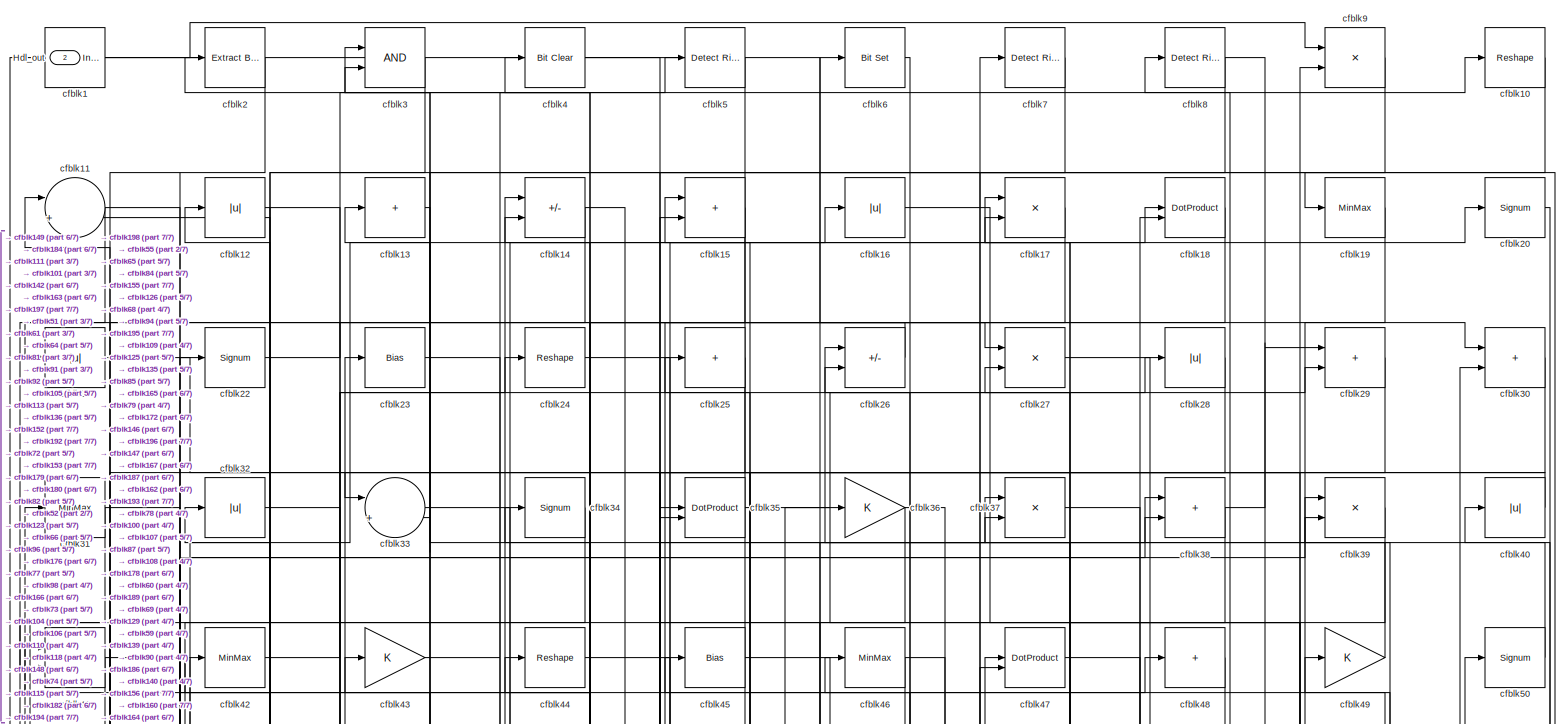
[diagram: root canvas - part 1/7, full width, top band]
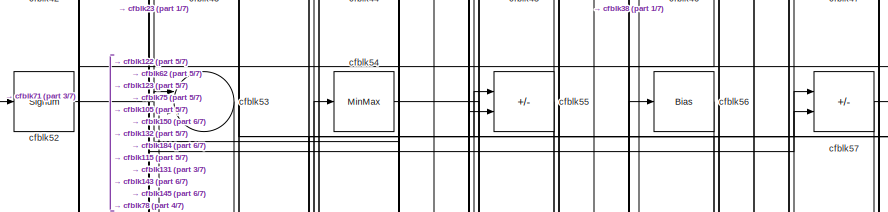
[diagram: root canvas - part 2/7, top center region]
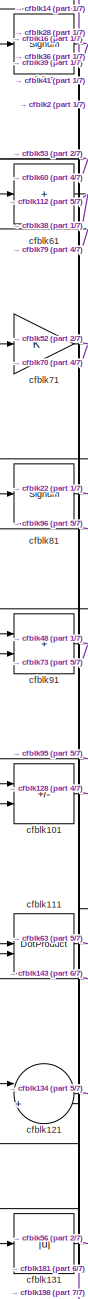
[diagram: root canvas - part 3/7, middle left region]
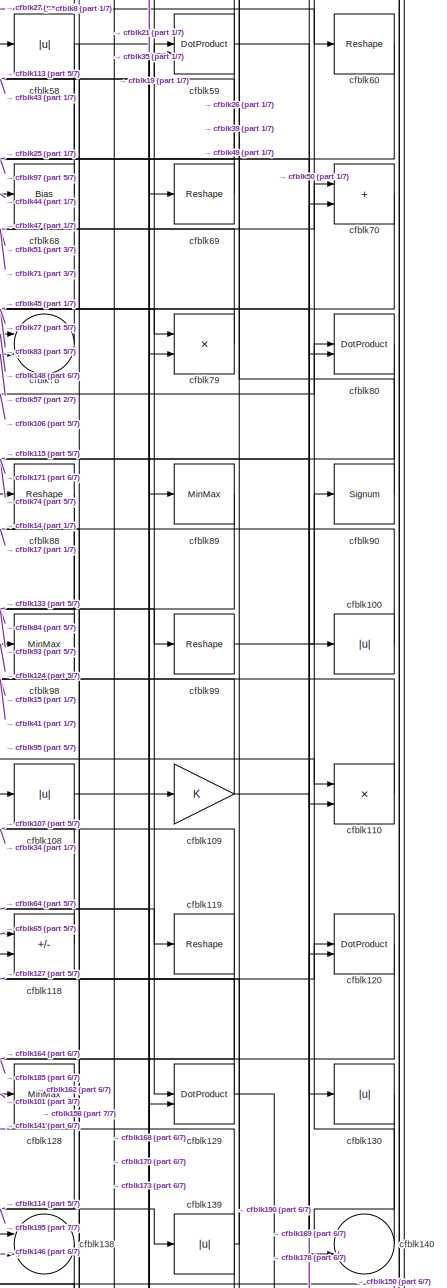
[diagram: root canvas - part 4/7, middle right region]
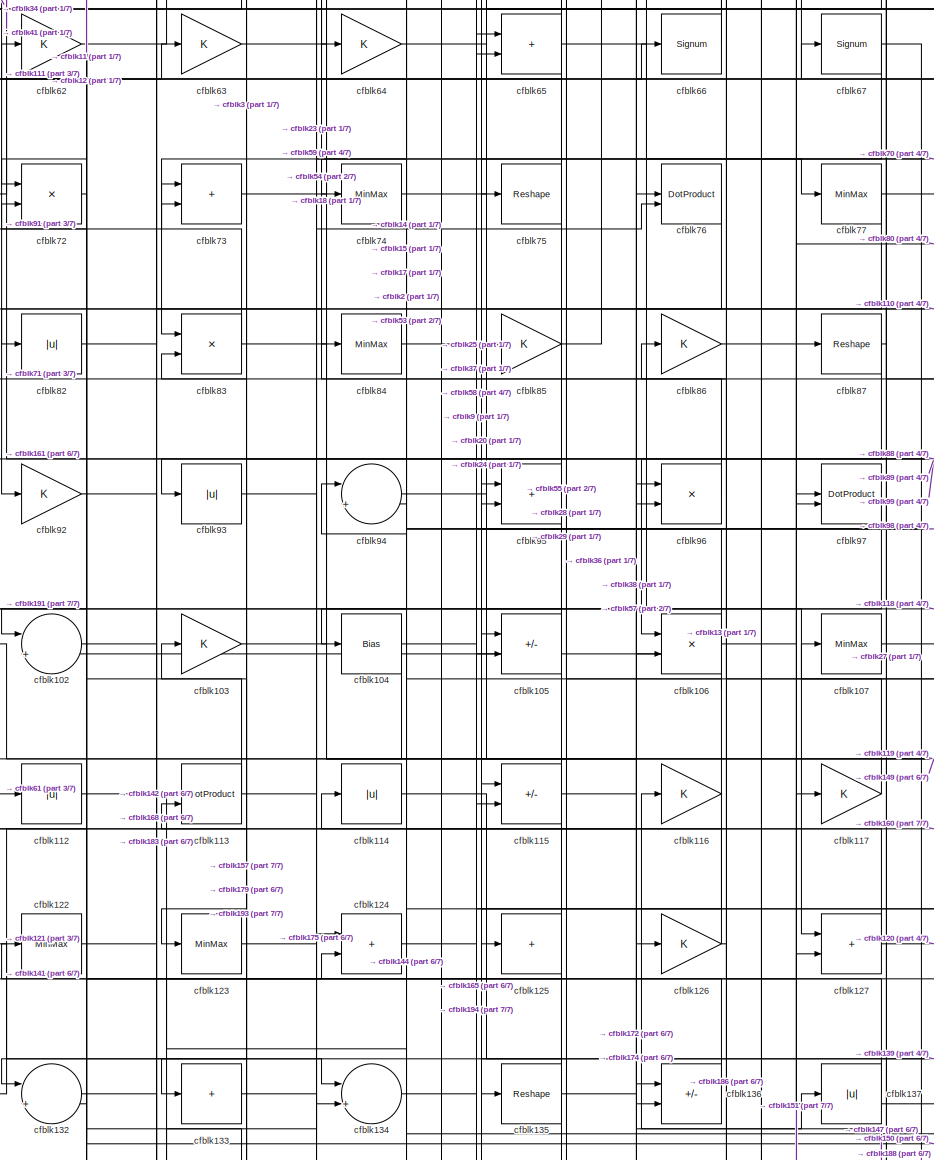
[diagram: root canvas - part 5/7, central region]
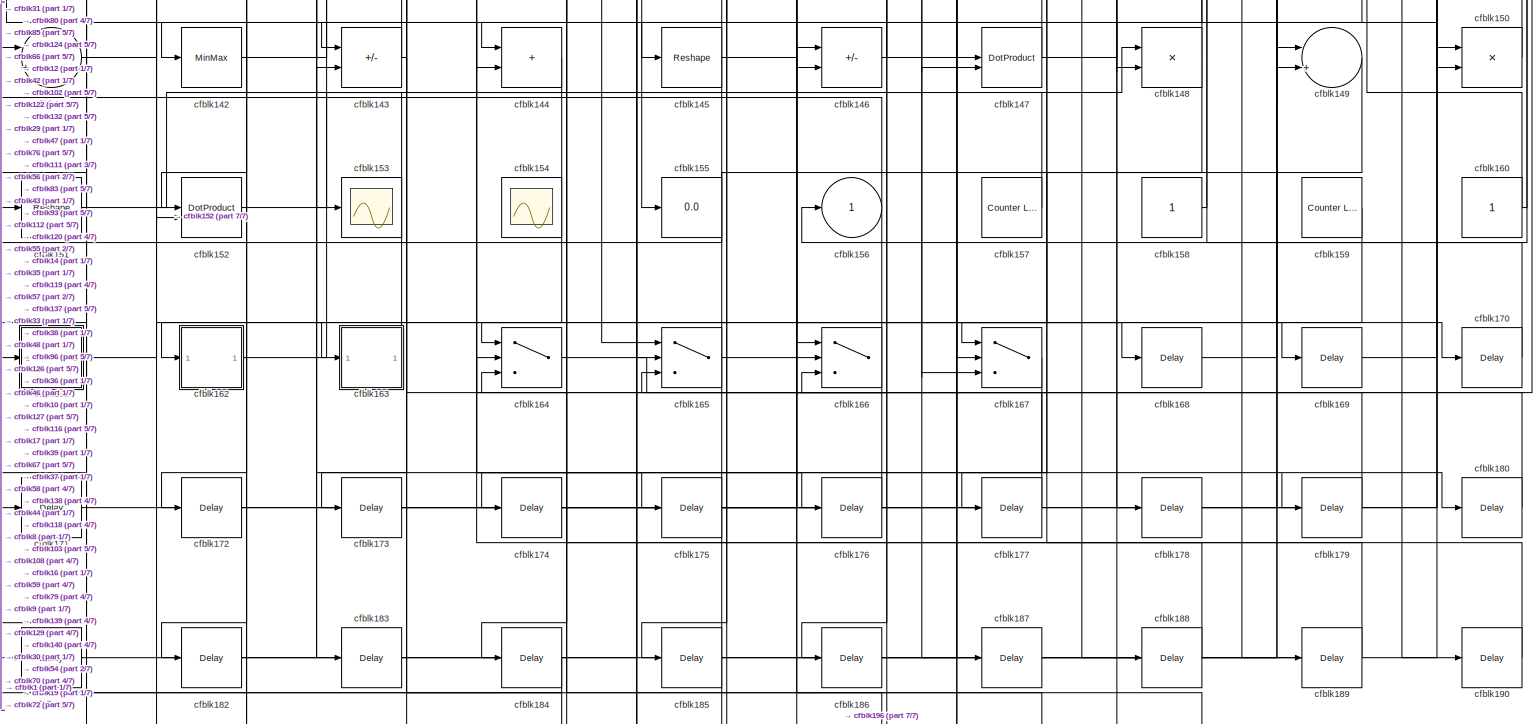
[diagram: root canvas - part 6/7, full width, bottom band]
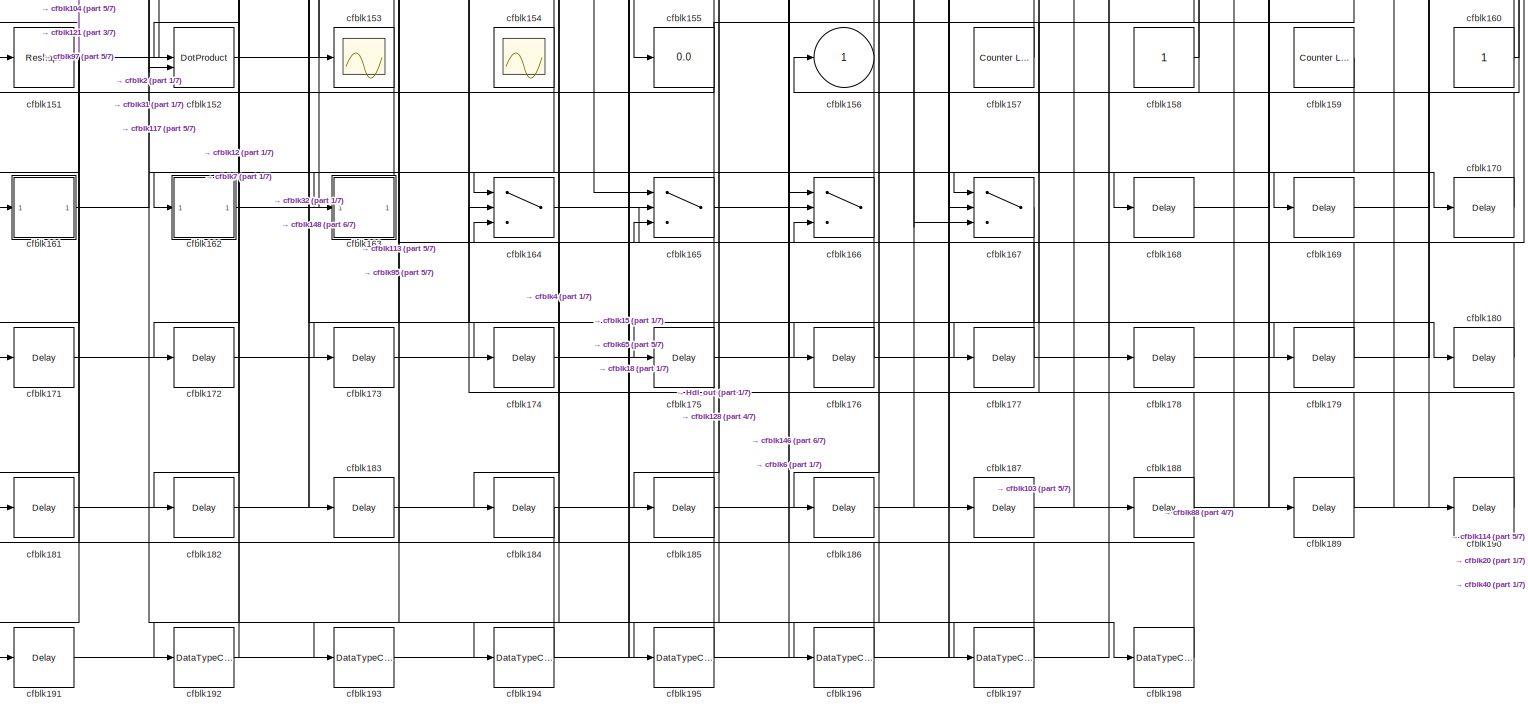
[diagram: root canvas - part 7/7, full width, bottom band]
MODEL slx_fd63c8d39bc7
KIND model
CONFIG AbsTol = auto
CONFIG EnableMultiTasking = off
CONFIG FixedStep = auto
CONFIG MaxStep = auto
CONFIG MinStep = auto
CONFIG RelTol = 1e-3
CONFIG SampleTimeConstraint = Unconstrained
CONFIG SolverName = VariableStepAuto
CONFIG StartTime = 0.0
CONFIG StopTime = 10.0
BLOCK [Outport] Hdl_out
  OutDataTypeStr = uint8
  Port = 2
BLOCK [Reference] cfblk1  REF=simulink/Logic and Bit
Operations/Detect
Increase
  LibrarySourceBlock = hdlsllib/Logic and Bit\nOperations/Detect\nIncrease
  SourceBlock = simulink/Logic and Bit\nOperations/Detect\nIncrease
  SourceType = Detect Increase
BLOCK [Reshape] cfblk10
BLOCK [Abs] cfblk100
  OutDataTypeStr = uint8
  SaturateOnIntegerOverflow = off
BLOCK [Sum] cfblk101
  IconShape = rectangular
  Inputs = +-
  OutDataTypeStr = uint8
BLOCK [Sum] cfblk102
  Inputs = |++
  OutDataTypeStr = uint8
BLOCK [Gain] cfblk103
  OutDataTypeStr = uint8
BLOCK [Bias] cfblk104
  Bias = 0.0
  SaturateOnIntegerOverflow = off
BLOCK [Sum] cfblk105
  IconShape = rectangular
  Inputs = +-
  OutDataTypeStr = uint8
BLOCK [Product] cfblk106
  Inputs = */
  OutDataTypeStr = uint8
  RndMeth = Zero
  SaturateOnIntegerOverflow = on
BLOCK [MinMax] cfblk107
  OutDataTypeStr = uint8
BLOCK [Abs] cfblk108
  OutDataTypeStr = uint8
  SaturateOnIntegerOverflow = off
BLOCK [Gain] cfblk109
  OutDataTypeStr = uint8
BLOCK [Sum] cfblk11
  Inputs = |++
  OutDataTypeStr = uint8
BLOCK [Product] cfblk110
  Inputs = */
  OutDataTypeStr = uint8
  RndMeth = Zero
  SaturateOnIntegerOverflow = on
BLOCK [DotProduct] cfblk111
  OutDataTypeStr = uint8
BLOCK [Abs] cfblk112
  OutDataTypeStr = uint8
  SaturateOnIntegerOverflow = off
BLOCK [DotProduct] cfblk113
  OutDataTypeStr = uint8
BLOCK [Abs] cfblk114
  OutDataTypeStr = uint8
  SaturateOnIntegerOverflow = off
BLOCK [Sum] cfblk115
  IconShape = rectangular
  Inputs = +-
  OutDataTypeStr = uint8
BLOCK [Gain] cfblk116
  OutDataTypeStr = uint8
BLOCK [Gain] cfblk117
  OutDataTypeStr = uint8
BLOCK [Sum] cfblk118
  IconShape = rectangular
  Inputs = +-
  OutDataTypeStr = uint8
BLOCK [Reshape] cfblk119
BLOCK [Abs] cfblk12
  OutDataTypeStr = uint8
  SaturateOnIntegerOverflow = off
BLOCK [DotProduct] cfblk120
  OutDataTypeStr = uint8
BLOCK [Sum] cfblk121
  Inputs = |++
  OutDataTypeStr = uint8
BLOCK [MinMax] cfblk122
  OutDataTypeStr = uint8
BLOCK [MinMax] cfblk123
  OutDataTypeStr = uint8
BLOCK [Sum] cfblk124
  IconShape = rectangular
  OutDataTypeStr = uint8
BLOCK [Sum] cfblk125
  IconShape = rectangular
  Inputs = +
  OutDataTypeStr = uint8
BLOCK [Gain] cfblk126
  OutDataTypeStr = uint8
BLOCK [Sum] cfblk127
  IconShape = rectangular
  OutDataTypeStr = uint8
BLOCK [MinMax] cfblk128
  OutDataTypeStr = uint8
BLOCK [DotProduct] cfblk129
  OutDataTypeStr = uint8
BLOCK [Sum] cfblk13
  IconShape = rectangular
  Inputs = +
  OutDataTypeStr = uint8
BLOCK [Abs] cfblk130
  OutDataTypeStr = uint8
  SaturateOnIntegerOverflow = off
BLOCK [Abs] cfblk131
  OutDataTypeStr = uint8
  SaturateOnIntegerOverflow = off
BLOCK [Sum] cfblk132
  Inputs = |++
  OutDataTypeStr = uint8
BLOCK [Sum] cfblk133
  IconShape = rectangular
  Inputs = +
  OutDataTypeStr = uint8
BLOCK [Sum] cfblk134
  Inputs = |++
  OutDataTypeStr = uint8
BLOCK [Reshape] cfblk135
BLOCK [Sum] cfblk136
  IconShape = rectangular
  Inputs = +-
  OutDataTypeStr = uint8
BLOCK [Abs] cfblk137
  OutDataTypeStr = uint8
  SaturateOnIntegerOverflow = off
BLOCK [Sum] cfblk138
  Inputs = |++
  OutDataTypeStr = uint8
BLOCK [Abs] cfblk139
  OutDataTypeStr = uint8
  SaturateOnIntegerOverflow = off
BLOCK [Sum] cfblk14
  IconShape = rectangular
  Inputs = +-
  OutDataTypeStr = uint8
BLOCK [Sum] cfblk140
  Inputs = |++
  OutDataTypeStr = uint8
BLOCK [Sum] cfblk141
  Inputs = |++
  OutDataTypeStr = uint8
BLOCK [MinMax] cfblk142
  OutDataTypeStr = uint8
BLOCK [Sum] cfblk143
  IconShape = rectangular
  Inputs = +-
  OutDataTypeStr = uint8
BLOCK [Sum] cfblk144
  IconShape = rectangular
  OutDataTypeStr = uint8
BLOCK [Reshape] cfblk145
BLOCK [Sum] cfblk146
  IconShape = rectangular
  Inputs = +-
  OutDataTypeStr = uint8
BLOCK [DotProduct] cfblk147
  OutDataTypeStr = uint8
BLOCK [Product] cfblk148
  Inputs = */
  OutDataTypeStr = uint8
  RndMeth = Zero
  SaturateOnIntegerOverflow = on
BLOCK [Sum] cfblk149
  Inputs = |++
  OutDataTypeStr = uint8
BLOCK [Sum] cfblk15
  IconShape = rectangular
  OutDataTypeStr = uint8
BLOCK [Product] cfblk150
  Inputs = */
  OutDataTypeStr = uint8
  RndMeth = Zero
  SaturateOnIntegerOverflow = on
BLOCK [Reshape] cfblk151
BLOCK [DotProduct] cfblk152
  OutDataTypeStr = uint8
BLOCK [Scope] cfblk153
  Floating = off
  NumInputPorts = 1
  ScopeSpecificationString = Simulink.scopes.TimeScopeBlockCfg('CurrentConfiguration', extmgr.ConfigurationSet(extmgr.Configuration('Core','General UI',true),extmgr.Configuration('Core','Source UI',true),extmgr.Configuration('Sources','WiredSimulink',true,'DataLoggingVariableName','ScopeData2','DataLoggingSaveFormat','Array','DataLoggingLimitDataPoints',true,'DataLoggingDecimation','1'),extmgr.Configuration('Visuals','Time Do...<+868ch>
BLOCK [Scope] cfblk154
  Floating = on
  NumInputPorts = 1
  ScopeSpecificationString = Simulink.scopes.TimeScopeBlockCfg('CurrentConfiguration', extmgr.ConfigurationSet(extmgr.Configuration('Core','General UI',true,'FigureColor',[0.156862745098039 0.156862745098039 0.156862745098039]),extmgr.Configuration('Core','Source UI',true),extmgr.Configuration('Sources','WiredSimulink',true,'DataLoggingVariableName','ScopeData1','DataLoggingSaveFormat','StructureWithTime','DataLoggingLimitDat...<+2713ch>
BLOCK [Display] cfblk155
  Decimation = 1
BLOCK [Outport] cfblk156
  OutDataTypeStr = uint8
  VectorParamsAs1DForOutWhenUnconnected = off
BLOCK [Reference] cfblk157  REF=hdlsllib/Sources/Counter
Limited
  SourceBlock = hdlsllib/Sources/Counter\nLimited
  SourceType = Counter Limited
BLOCK [Constant] cfblk158
  OutDataTypeStr = uint8
  SampleTime = -1
BLOCK [Reference] cfblk159  REF=hdlsllib/Sources/Counter
Limited
  SourceBlock = hdlsllib/Sources/Counter\nLimited
  SourceType = Counter Limited
BLOCK [Abs] cfblk16
  OutDataTypeStr = uint8
  SaturateOnIntegerOverflow = off
BLOCK [Constant] cfblk160
  OutDataTypeStr = uint8
  SampleTime = -1
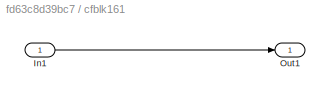
BLOCK [SubSystem] cfblk161
  LibrarySourceBlock = hdlsllib/Ports &\nSubsystems/Subsystem
BLOCK [Inport] cfblk161/In1
BLOCK [Outport] cfblk161/Out1
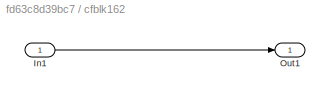
BLOCK [SubSystem] cfblk162
  LibrarySourceBlock = hdlsllib/Ports &\nSubsystems/Subsystem
BLOCK [Inport] cfblk162/In1
BLOCK [Outport] cfblk162/Out1
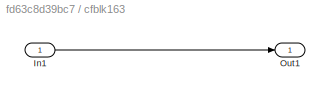
BLOCK [SubSystem] cfblk163
  LibrarySourceBlock = hdlsllib/Ports &\nSubsystems/Subsystem
BLOCK [Inport] cfblk163/In1
BLOCK [Outport] cfblk163/Out1
BLOCK [Switch] cfblk164
  InputSameDT = off
  OutDataTypeStr = uint8
  SaturateOnIntegerOverflow = off
BLOCK [Switch] cfblk165
  InputSameDT = off
  OutDataTypeStr = uint8
  SaturateOnIntegerOverflow = off
BLOCK [Switch] cfblk166
  InputSameDT = off
  OutDataTypeStr = uint8
  SaturateOnIntegerOverflow = off
BLOCK [Switch] cfblk167
  InputSameDT = off
  OutDataTypeStr = uint8
  SaturateOnIntegerOverflow = off
BLOCK [Delay] cfblk168
  InputPortMap = u0
  SampleTime = 1
BLOCK [Delay] cfblk169
  InputPortMap = u0
  SampleTime = 1
BLOCK [Product] cfblk17
  Inputs = */
  OutDataTypeStr = uint8
  RndMeth = Zero
  SaturateOnIntegerOverflow = on
BLOCK [Delay] cfblk170
  InputPortMap = u0
  SampleTime = 1
BLOCK [Delay] cfblk171
  InputPortMap = u0
  SampleTime = 1
BLOCK [Delay] cfblk172
  InputPortMap = u0
  SampleTime = 1
BLOCK [Delay] cfblk173
  InputPortMap = u0
  SampleTime = 1
BLOCK [Delay] cfblk174
  InputPortMap = u0
  SampleTime = 1
BLOCK [Delay] cfblk175
  InputPortMap = u0
  SampleTime = 1
BLOCK [Delay] cfblk176
  InputPortMap = u0
  SampleTime = 1
BLOCK [Delay] cfblk177
  InputPortMap = u0
  SampleTime = 1
BLOCK [Delay] cfblk178
  InputPortMap = u0
  SampleTime = 1
BLOCK [Delay] cfblk179
  InputPortMap = u0
  SampleTime = 1
BLOCK [DotProduct] cfblk18
  OutDataTypeStr = uint8
BLOCK [Delay] cfblk180
  InputPortMap = u0
  SampleTime = 1
BLOCK [Delay] cfblk181
  InputPortMap = u0
  SampleTime = 1
BLOCK [Delay] cfblk182
  InputPortMap = u0
  SampleTime = 1
BLOCK [Delay] cfblk183
  InputPortMap = u0
  SampleTime = 1
BLOCK [Delay] cfblk184
  InputPortMap = u0
  SampleTime = 1
BLOCK [Delay] cfblk185
  InputPortMap = u0
  SampleTime = 1
BLOCK [Delay] cfblk186
  InputPortMap = u0
  SampleTime = 1
BLOCK [Delay] cfblk187
  InputPortMap = u0
  SampleTime = 1
BLOCK [Delay] cfblk188
  InputPortMap = u0
  SampleTime = 1
BLOCK [Delay] cfblk189
  InputPortMap = u0
  SampleTime = 1
BLOCK [MinMax] cfblk19
  OutDataTypeStr = uint8
BLOCK [Delay] cfblk190
  InputPortMap = u0
  SampleTime = 1
BLOCK [Delay] cfblk191
  InputPortMap = u0
  SampleTime = 1
BLOCK [DataTypeConversion] cfblk192
  OutDataTypeStr = uint8
  RndMeth = Floor
  SaturateOnIntegerOverflow = off
BLOCK [DataTypeConversion] cfblk193
  OutDataTypeStr = uint8
  RndMeth = Floor
  SaturateOnIntegerOverflow = off
BLOCK [DataTypeConversion] cfblk194
  OutDataTypeStr = uint8
  RndMeth = Floor
  SaturateOnIntegerOverflow = off
BLOCK [DataTypeConversion] cfblk195
  OutDataTypeStr = uint8
  RndMeth = Floor
  SaturateOnIntegerOverflow = off
BLOCK [DataTypeConversion] cfblk196
  OutDataTypeStr = uint8
  RndMeth = Floor
  SaturateOnIntegerOverflow = off
BLOCK [DataTypeConversion] cfblk197
  OutDataTypeStr = uint8
  RndMeth = Floor
  SaturateOnIntegerOverflow = off
BLOCK [DataTypeConversion] cfblk198
  OutDataTypeStr = uint8
  RndMeth = Floor
  SaturateOnIntegerOverflow = off
BLOCK [Reference] cfblk2  REF=simulink/Logic and Bit
Operations/Extract Bits
  LibrarySourceBlock = hdlsllib/Logic and Bit\nOperations/Extract Bits
  SourceBlock = simulink/Logic and Bit\nOperations/Extract Bits
  SourceType = Extract Bits
BLOCK [Signum] cfblk20
BLOCK [Abs] cfblk21
  OutDataTypeStr = uint8
  SaturateOnIntegerOverflow = off
BLOCK [Signum] cfblk22
BLOCK [Bias] cfblk23
  Bias = 0.0
  SaturateOnIntegerOverflow = off
BLOCK [Reshape] cfblk24
BLOCK [Sum] cfblk25
  IconShape = rectangular
  Inputs = +
  OutDataTypeStr = uint8
BLOCK [Sum] cfblk26
  IconShape = rectangular
  Inputs = +-
  OutDataTypeStr = uint8
BLOCK [Product] cfblk27
  Inputs = */
  OutDataTypeStr = uint8
  RndMeth = Zero
  SaturateOnIntegerOverflow = on
BLOCK [Abs] cfblk28
  OutDataTypeStr = uint8
  SaturateOnIntegerOverflow = off
BLOCK [Sum] cfblk29
  IconShape = rectangular
  OutDataTypeStr = uint8
BLOCK [Logic] cfblk3
  AllPortsSameDT = off
  OutDataTypeStr = boolean
BLOCK [Sum] cfblk30
  IconShape = rectangular
  OutDataTypeStr = uint8
BLOCK [MinMax] cfblk31
  OutDataTypeStr = uint8
BLOCK [Abs] cfblk32
  OutDataTypeStr = uint8
  SaturateOnIntegerOverflow = off
BLOCK [Sum] cfblk33
  Inputs = |++
  OutDataTypeStr = uint8
BLOCK [Signum] cfblk34
BLOCK [DotProduct] cfblk35
  OutDataTypeStr = uint8
BLOCK [Gain] cfblk36
  OutDataTypeStr = uint8
BLOCK [Product] cfblk37
  Inputs = */
  OutDataTypeStr = uint8
  RndMeth = Zero
  SaturateOnIntegerOverflow = on
BLOCK [Sum] cfblk38
  IconShape = rectangular
  OutDataTypeStr = uint8
BLOCK [Product] cfblk39
  Inputs = */
  OutDataTypeStr = uint8
  RndMeth = Zero
  SaturateOnIntegerOverflow = on
BLOCK [Reference] cfblk4  REF=simulink/Logic and Bit
Operations/Bit Clear
  LibrarySourceBlock = hdlsllib/Logic and Bit\nOperations/Bit Clear
  SourceBlock = simulink/Logic and Bit\nOperations/Bit Clear
  SourceType = Bit Clear
BLOCK [Abs] cfblk40
  OutDataTypeStr = uint8
  SaturateOnIntegerOverflow = off
BLOCK [Product] cfblk41
  Inputs = */
  OutDataTypeStr = uint8
  RndMeth = Zero
  SaturateOnIntegerOverflow = on
BLOCK [MinMax] cfblk42
  OutDataTypeStr = uint8
BLOCK [Gain] cfblk43
  OutDataTypeStr = uint8
BLOCK [Reshape] cfblk44
BLOCK [Bias] cfblk45
  Bias = 0.0
  SaturateOnIntegerOverflow = off
BLOCK [MinMax] cfblk46
  OutDataTypeStr = uint8
BLOCK [DotProduct] cfblk47
  OutDataTypeStr = uint8
BLOCK [Sum] cfblk48
  IconShape = rectangular
  Inputs = +
  OutDataTypeStr = uint8
BLOCK [Gain] cfblk49
  OutDataTypeStr = uint8
BLOCK [Reference] cfblk5  REF=hdlsllib/Logic and Bit
Operations/Detect Rise
Positive
  SourceBlock = hdlsllib/Logic and Bit\nOperations/Detect Rise\nPositive
  SourceType = Detect Rise Positive
BLOCK [Signum] cfblk50
BLOCK [Signum] cfblk51
BLOCK [Signum] cfblk52
BLOCK [Sum] cfblk53
  Inputs = |++
  OutDataTypeStr = uint8
BLOCK [MinMax] cfblk54
  OutDataTypeStr = uint8
BLOCK [Sum] cfblk55
  IconShape = rectangular
  Inputs = +-
  OutDataTypeStr = uint8
BLOCK [Bias] cfblk56
  Bias = 0.0
  SaturateOnIntegerOverflow = off
BLOCK [Sum] cfblk57
  IconShape = rectangular
  Inputs = +-
  OutDataTypeStr = uint8
BLOCK [Abs] cfblk58
  OutDataTypeStr = uint8
  SaturateOnIntegerOverflow = off
BLOCK [DotProduct] cfblk59
  OutDataTypeStr = uint8
BLOCK [Reference] cfblk6  REF=simulink/Logic and Bit
Operations/Bit Set
  LibrarySourceBlock = hdlsllib/Logic and Bit\nOperations/Bit Set
  SourceBlock = simulink/Logic and Bit\nOperations/Bit Set
  SourceType = Bit Set
BLOCK [Reshape] cfblk60
BLOCK [Sum] cfblk61
  IconShape = rectangular
  Inputs = +
  OutDataTypeStr = uint8
BLOCK [Gain] cfblk62
  OutDataTypeStr = uint8
BLOCK [Gain] cfblk63
  OutDataTypeStr = uint8
BLOCK [Gain] cfblk64
  OutDataTypeStr = uint8
BLOCK [Sum] cfblk65
  IconShape = rectangular
  OutDataTypeStr = uint8
BLOCK [Signum] cfblk66
BLOCK [Signum] cfblk67
BLOCK [Bias] cfblk68
  Bias = 0.0
  SaturateOnIntegerOverflow = off
BLOCK [Reshape] cfblk69
BLOCK [Reference] cfblk7  REF=hdlsllib/Logic and Bit
Operations/Detect Rise
Positive
  SourceBlock = hdlsllib/Logic and Bit\nOperations/Detect Rise\nPositive
  SourceType = Detect Rise Positive
BLOCK [Sum] cfblk70
  IconShape = rectangular
  OutDataTypeStr = uint8
BLOCK [Gain] cfblk71
  OutDataTypeStr = uint8
BLOCK [Product] cfblk72
  Inputs = */
  OutDataTypeStr = uint8
  RndMeth = Zero
  SaturateOnIntegerOverflow = on
BLOCK [Sum] cfblk73
  IconShape = rectangular
  OutDataTypeStr = uint8
BLOCK [MinMax] cfblk74
  OutDataTypeStr = uint8
BLOCK [Reshape] cfblk75
BLOCK [DotProduct] cfblk76
  OutDataTypeStr = uint8
BLOCK [MinMax] cfblk77
  OutDataTypeStr = uint8
BLOCK [Sum] cfblk78
  Inputs = |++
  OutDataTypeStr = uint8
BLOCK [Product] cfblk79
  Inputs = */
  OutDataTypeStr = uint8
  RndMeth = Zero
  SaturateOnIntegerOverflow = on
BLOCK [Reference] cfblk8  REF=hdlsllib/Logic and Bit
Operations/Detect Rise
Nonnegative
  SourceBlock = hdlsllib/Logic and Bit\nOperations/Detect Rise\nNonnegative
  SourceType = Detect Rise Nonnegative
BLOCK [DotProduct] cfblk80
  OutDataTypeStr = uint8
BLOCK [Signum] cfblk81
BLOCK [Abs] cfblk82
  OutDataTypeStr = uint8
  SaturateOnIntegerOverflow = off
BLOCK [Product] cfblk83
  Inputs = */
  OutDataTypeStr = uint8
  RndMeth = Zero
  SaturateOnIntegerOverflow = on
BLOCK [MinMax] cfblk84
  OutDataTypeStr = uint8
BLOCK [Gain] cfblk85
  OutDataTypeStr = uint8
BLOCK [Gain] cfblk86
  OutDataTypeStr = uint8
BLOCK [Reshape] cfblk87
BLOCK [Reshape] cfblk88
BLOCK [MinMax] cfblk89
  OutDataTypeStr = uint8
BLOCK [Product] cfblk9
  Inputs = */
  OutDataTypeStr = uint8
  RndMeth = Zero
  SaturateOnIntegerOverflow = on
BLOCK [Signum] cfblk90
BLOCK [Sum] cfblk91
  IconShape = rectangular
  OutDataTypeStr = uint8
BLOCK [Gain] cfblk92
  OutDataTypeStr = uint8
BLOCK [Abs] cfblk93
  OutDataTypeStr = uint8
  SaturateOnIntegerOverflow = off
BLOCK [Sum] cfblk94
  Inputs = |++
  OutDataTypeStr = uint8
BLOCK [Sum] cfblk95
  IconShape = rectangular
  OutDataTypeStr = uint8
BLOCK [Product] cfblk96
  Inputs = */
  OutDataTypeStr = uint8
  RndMeth = Zero
  SaturateOnIntegerOverflow = on
BLOCK [DotProduct] cfblk97
  OutDataTypeStr = uint8
BLOCK [MinMax] cfblk98
  OutDataTypeStr = uint8
BLOCK [Reshape] cfblk99
LINE cfblk100:1 -> cfblk17:1
LINE cfblk101:1 -> cfblk128:1
LINE cfblk102:1 -> cfblk168:1
LINE cfblk103:1 -> cfblk149:1
NET cfblk104:1 -> cfblk151:1, cfblk85:1
LINE cfblk105:1 -> cfblk53:1
NET cfblk106:1 -> cfblk102:2, cfblk2:1, cfblk80:1
NET cfblk107:1 -> cfblk110:1, cfblk27:2
LINE cfblk108:1 -> cfblk170:1
NET cfblk109:1 -> cfblk130:1, cfblk15:1
LINE cfblk10:1 -> cfblk167:2
LINE cfblk110:1 -> cfblk41:1
NET cfblk111:1 -> cfblk181:1, cfblk63:1
LINE cfblk112:1 -> cfblk144:1
NET cfblk113:1 -> cfblk11:2, cfblk59:1
LINE cfblk114:1 -> cfblk139:1
LINE cfblk115:1 -> cfblk57:1
NET cfblk116:1 -> cfblk165:2, cfblk95:1
LINE cfblk117:1 -> cfblk86:1
LINE cfblk118:1 -> cfblk34:1
NET cfblk119:1 -> cfblk107:1, cfblk185:1
NET cfblk11:1 -> cfblk41:2, cfblk64:1
LINE cfblk120:1 -> cfblk164:1
LINE cfblk121:1 -> cfblk134:1
NET cfblk122:1 -> cfblk144:2, cfblk57:2
LINE cfblk123:1 -> cfblk55:1
NET cfblk124:1 -> cfblk94:1, cfblk98:1
LINE cfblk125:1 -> cfblk132:2
NET cfblk126:1 -> cfblk11:1, cfblk186:1
NET cfblk127:1 -> cfblk120:1, cfblk94:2
LINE cfblk128:1 -> cfblk195:1
NET cfblk129:1 -> cfblk190:1, cfblk8:1
NET cfblk12:1 -> cfblk152:1, cfblk179:1, cfblk180:1, cfblk84:1
LINE cfblk130:1 -> cfblk140:1
LINE cfblk131:1 -> cfblk56:1
LINE cfblk132:1 -> cfblk183:1
LINE cfblk133:1 -> cfblk134:2
LINE cfblk134:1 -> cfblk105:2
NET cfblk135:1 -> cfblk62:1, cfblk67:1
LINE cfblk136:1 -> cfblk12:1
LINE cfblk137:1 -> cfblk122:1
LINE cfblk138:1 -> cfblk162:1
NET cfblk139:1 -> cfblk141:2, cfblk26:2, cfblk49:1
LINE cfblk13:1 -> cfblk123:1
LINE cfblk140:1 -> cfblk50:1
LINE cfblk141:1 -> cfblk124:2
NET cfblk142:1 -> cfblk29:2, cfblk76:2
NET cfblk143:1 -> cfblk111:1, cfblk173:1
LINE cfblk144:1 -> cfblk182:1
LINE cfblk145:1 -> cfblk169:1
NET cfblk146:1 -> cfblk138:2, cfblk46:1
NET cfblk147:1 -> cfblk116:1, cfblk150:2
NET cfblk148:1 -> cfblk177:1, cfblk44:1
LINE cfblk149:1 -> cfblk31:1
NET cfblk14:1 -> cfblk165:1, cfblk81:1
NET cfblk150:1 -> cfblk138:1, cfblk72:2
LINE cfblk151:1 -> cfblk117:1
LINE cfblk152:1 -> cfblk148:1
LINE cfblk157:1 -> cfblk103:1
LINE cfblk158:1 -> cfblk88:1
LINE cfblk159:1 -> cfblk194:1
LINE cfblk15:1 -> cfblk104:1
NET cfblk160:1 -> cfblk114:1, cfblk40:1
LINE cfblk161/In1:1 -> cfblk161/Out1:1
LINE cfblk161:1 -> cfblk66:1
LINE cfblk162/In1:1 -> cfblk162/Out1:1
LINE cfblk162:1 -> cfblk47:2
LINE cfblk163/In1:1 -> cfblk163/Out1:1
LINE cfblk163:1 -> cfblk42:1
LINE cfblk164:1 -> cfblk19:1
NET cfblk165:1 -> cfblk137:1, cfblk38:1
NET cfblk166:1 -> cfblk141:1, cfblk165:3
LINE cfblk167:1 -> cfblk174:1
LINE cfblk168:1 -> cfblk59:2
LINE cfblk169:1 -> cfblk140:2
LINE cfblk16:1 -> cfblk149:2
LINE cfblk170:1 -> cfblk118:2
LINE cfblk171:1 -> cfblk120:2
LINE cfblk172:1 -> cfblk76:1
LINE cfblk173:1 -> cfblk129:2
LINE cfblk174:1 -> cfblk96:1
LINE cfblk175:1 -> cfblk147:1
LINE cfblk176:1 -> cfblk164:2
LINE cfblk177:1 -> cfblk166:2
LINE cfblk178:1 -> cfblk70:2
LINE cfblk179:1 -> cfblk83:2
LINE cfblk17:1 -> cfblk74:1
LINE cfblk180:1 -> cfblk166:3
LINE cfblk181:1 -> cfblk143:2
LINE cfblk182:1 -> cfblk35:1
LINE cfblk183:1 -> cfblk127:2
LINE cfblk184:1 -> cfblk1:1
LINE cfblk185:1 -> cfblk79:2
LINE cfblk186:1 -> cfblk30:2
LINE cfblk187:1 -> cfblk9:2
LINE cfblk188:1 -> cfblk124:1
LINE cfblk189:1 -> cfblk17:2
LINE cfblk18:1 -> cfblk155:1
LINE cfblk190:1 -> cfblk164:3
LINE cfblk191:1 -> cfblk65:1
LINE cfblk192:1 -> cfblk32:1
LINE cfblk193:1 -> cfblk7:1
NET cfblk194:1 -> cfblk113:2, cfblk15:2, cfblk18:2, cfblk97:1
NET cfblk195:1 -> Hdl_out:1, cfblk6:1
LINE cfblk196:1 -> cfblk146:1
LINE cfblk197:1 -> cfblk4:1
LINE cfblk198:1 -> cfblk121:1
LINE cfblk19:1 -> cfblk129:1
LINE cfblk1:1 -> cfblk9:1
LINE cfblk20:1 -> cfblk156:1
LINE cfblk21:1 -> cfblk69:1
LINE cfblk22:1 -> cfblk30:1
LINE cfblk23:1 -> cfblk77:1
LINE cfblk24:1 -> cfblk126:1
LINE cfblk25:1 -> cfblk115:2
LINE cfblk26:1 -> cfblk21:1
LINE cfblk27:1 -> cfblk60:1
NET cfblk28:1 -> cfblk135:1, cfblk91:1
LINE cfblk29:1 -> cfblk125:1
NET cfblk2:1 -> cfblk101:1, cfblk152:2
LINE cfblk30:1 -> cfblk35:2
NET cfblk31:1 -> cfblk142:1, cfblk163:1, cfblk197:1
LINE cfblk32:1 -> cfblk153:1
LINE cfblk33:1 -> cfblk166:1
LINE cfblk34:1 -> cfblk92:1
NET cfblk35:1 -> cfblk109:1, cfblk28:1
NET cfblk36:1 -> cfblk187:1, cfblk61:1, cfblk91:2
LINE cfblk37:1 -> cfblk178:1
NET cfblk38:1 -> cfblk136:2, cfblk29:1, cfblk55:2
LINE cfblk39:1 -> cfblk167:1
LINE cfblk3:1 -> cfblk72:1
LINE cfblk40:1 -> cfblk33:1
NET cfblk41:1 -> cfblk105:1, cfblk111:2
LINE cfblk42:1 -> cfblk5:1
NET cfblk43:1 -> cfblk10:1, cfblk176:1
LINE cfblk44:1 -> cfblk68:1
LINE cfblk45:1 -> cfblk79:1
NET cfblk46:1 -> cfblk147:2, cfblk167:3, cfblk172:1
LINE cfblk47:1 -> cfblk108:1
LINE cfblk48:1 -> cfblk146:2
LINE cfblk49:1 -> cfblk3:1
LINE cfblk4:1 -> cfblk198:1
LINE cfblk50:1 -> cfblk26:1
NET cfblk51:1 -> cfblk16:1, cfblk39:2
LINE cfblk52:1 -> cfblk23:1
LINE cfblk53:1 -> cfblk131:1
LINE cfblk54:1 -> cfblk150:1
NET cfblk55:1 -> cfblk132:1, cfblk184:1
LINE cfblk56:1 -> cfblk143:1
NET cfblk57:1 -> cfblk145:1, cfblk78:2
NET cfblk58:1 -> cfblk148:2, cfblk78:1, cfblk89:1
NET cfblk59:1 -> cfblk100:1, cfblk25:1, cfblk97:2
LINE cfblk5:1 -> cfblk27:1
LINE cfblk60:1 -> cfblk101:2
NET cfblk61:1 -> cfblk112:1, cfblk38:2
LINE cfblk62:1 -> cfblk53:2
LINE cfblk63:1 -> cfblk136:1
LINE cfblk64:1 -> cfblk119:1
LINE cfblk65:1 -> cfblk118:1
LINE cfblk66:1 -> cfblk13:1
NET cfblk67:1 -> cfblk188:1, cfblk75:1
LINE cfblk68:1 -> cfblk43:1
LINE cfblk69:1 -> cfblk45:1
LINE cfblk6:1 -> cfblk196:1
LINE cfblk70:1 -> cfblk83:1
NET cfblk71:1 -> cfblk52:1, cfblk70:1
LINE cfblk72:1 -> cfblk102:1
LINE cfblk73:1 -> cfblk18:1
NET cfblk74:1 -> cfblk110:2, cfblk127:1, cfblk14:2
LINE cfblk75:1 -> cfblk54:1
LINE cfblk76:1 -> cfblk96:2
NET cfblk77:1 -> cfblk80:2, cfblk82:1
LINE cfblk78:1 -> cfblk47:1
LINE cfblk79:1 -> cfblk51:1
LINE cfblk7:1 -> cfblk192:1
NET cfblk80:1 -> cfblk115:1, cfblk171:1
LINE cfblk81:1 -> cfblk22:1
LINE cfblk82:1 -> cfblk24:1
NET cfblk83:1 -> cfblk106:2, cfblk73:2
NET cfblk84:1 -> cfblk37:2, cfblk58:1, cfblk99:1
NET cfblk85:1 -> cfblk161:1, cfblk36:1
LINE cfblk86:1 -> cfblk87:1
NET cfblk87:1 -> cfblk106:1, cfblk37:1
LINE cfblk88:1 -> cfblk133:1
LINE cfblk89:1 -> cfblk93:1
NET cfblk8:1 -> cfblk189:1, cfblk33:2
LINE cfblk90:1 -> cfblk39:1
NET cfblk91:1 -> cfblk48:1, cfblk73:1
LINE cfblk92:1 -> cfblk113:1
LINE cfblk93:1 -> cfblk175:1
LINE cfblk94:1 -> cfblk20:1
NET cfblk95:1 -> cfblk121:2, cfblk193:1
NET cfblk96:1 -> cfblk3:2, cfblk71:1
LINE cfblk97:1 -> cfblk191:1
NET cfblk98:1 -> cfblk14:1, cfblk95:2
LINE cfblk99:1 -> cfblk90:1
LINE cfblk9:1 -> cfblk65:2
note: NET lines group one-source signal fan-out (src -> all destinations, sorted); 1:1 wires keep LINE
